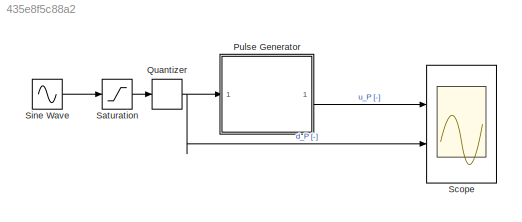
MODEL slx_435e8f5c88a2
KIND model
CONFIG AbsTol = auto
CONFIG EnableMultiTasking = off
CONFIG FixedStep = 0.05
CONFIG MaxStep = auto
CONFIG MinStep = auto
CONFIG RelTol = 1e-3
CONFIG SampleTimeConstraint = Unconstrained
CONFIG SolverName = ode4
CONFIG StartTime = 0.0
CONFIG StopTime = 2
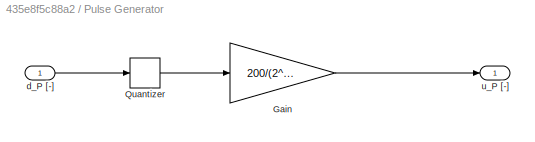
BLOCK [SubSystem] Pulse Generator
  Ports = [1, 1]
  RequestExecContextInheritance = off
BLOCK [Gain] Pulse Generator/Gain
  Gain = 200/(2^n-1)
BLOCK [Quantizer] Pulse Generator/Quantizer
  QuantizationInterval = 1
BLOCK [Inport] Pulse Generator/d_P [-]
BLOCK [Outport] Pulse Generator/u_P [-]
BLOCK [Quantizer] Quantizer
  QuantizationInterval = 1
BLOCK [Saturate] Saturation
  LowerLimit = 0
  UpperLimit = 255
BLOCK [Scope] Scope
  Floating = off
  NumInputPorts = 2
  Ports = [2]
  ScopeSpecificationString = Simulink.scopes.TimeScopeBlockCfg('CurrentConfiguration', extmgr.ConfigurationSet(extmgr.Configuration('Core','General UI',true),extmgr.Configuration('Core','Source UI',true),extmgr.Configuration('Sources','WiredSimulink',true),extmgr.Configuration('Visuals','Time Domain',true,'PlotType','Stairs','SerializedDisplays',{struct('MinYLimReal','-12.47554','MaxYLimReal','112.27984','YLabelReal','','MinY...<+1992ch>
BLOCK [Sin] Sine Wave
  Amplitude = 255
  Frequency = 2*pi
  Ports = [0, 1]
  SampleTime = 0
LINE Pulse Generator/Gain:1 -> Pulse Generator/u_P [-]:1
LINE Pulse Generator/Quantizer:1 -> Pulse Generator/Gain:1
LINE Pulse Generator/d_P [-]:1 -> Pulse Generator/Quantizer:1
LINE Pulse Generator:1 -> Scope:1
NET Quantizer:1 -> Pulse Generator:1, Scope:2
LINE Saturation:1 -> Quantizer:1
LINE Sine Wave:1 -> Saturation:1
note: NET lines group one-source signal fan-out (src -> all destinations, sorted); 1:1 wires keep LINE
